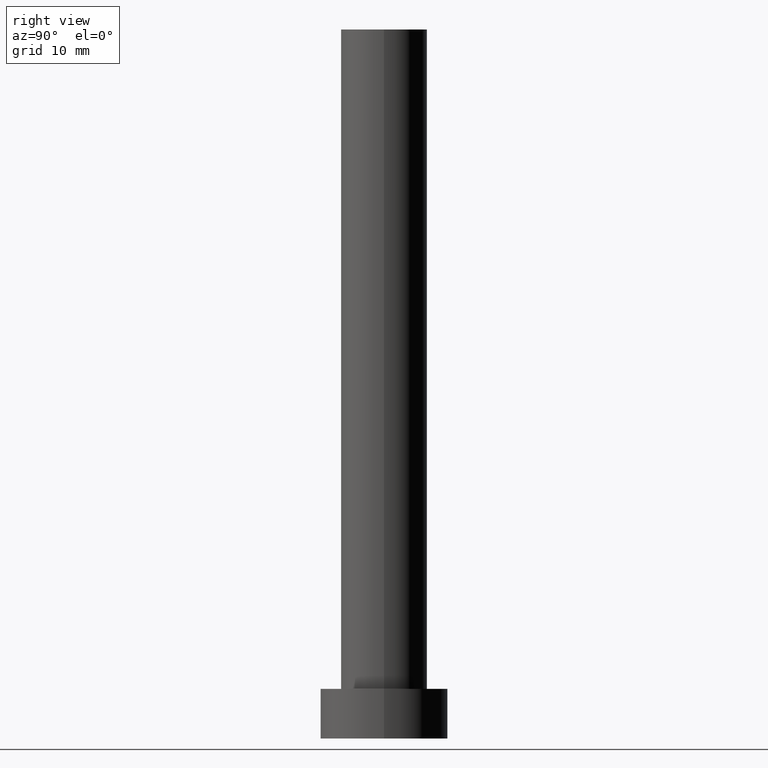
[diagram: clean part render]
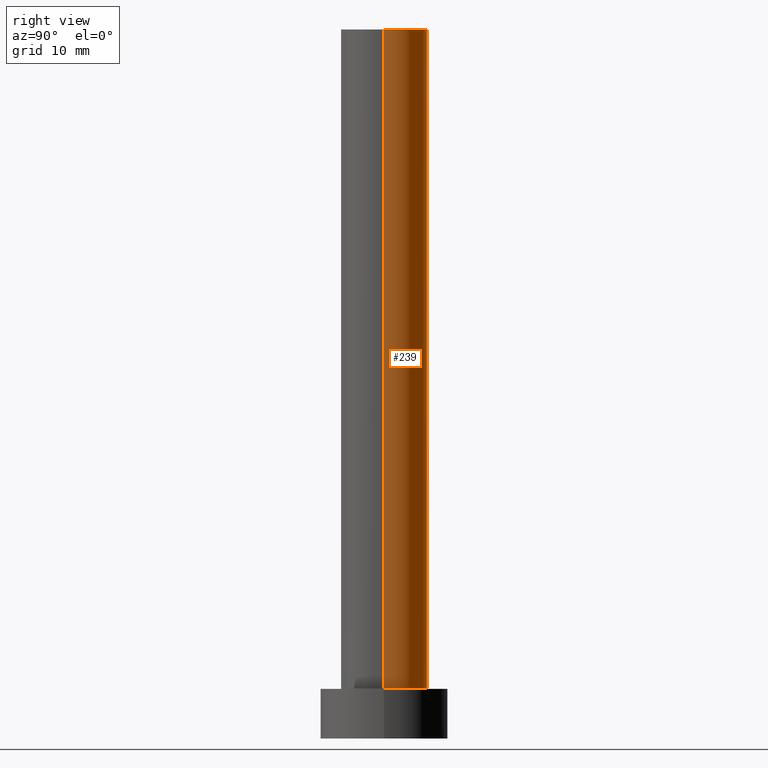
[diagram: same view with one face highlighted and labeled with its STEP entity id]
A machine part, right view. The second image highlights one B-rep face of the part: STEP entity #239.
In plain terms, the highlighted cylindrical surface (partial cylindrical patch) has radius 6.1 mm, axis along (-0, -0, -1).
Its self-contained STEP definition (entity closure, byte-faithful):
#9 = DIRECTION ( 'NONE',  ( 0.000000000000000000, 0.000000000000000000, 1.000000000000000000 ) ) ;
#14 = CARTESIAN_POINT ( 'NONE',  ( 0.000000000000000000, 0.000000000000000000, 100.0000000000000000 ) ) ;
#35 = VECTOR ( 'NONE', #182, 1000.000000000000000 ) ;
#44 = CARTESIAN_POINT ( 'NONE',  ( -6.099999999999999645, 0.000000000000000000, 100.0000000000000000 ) ) ;
#47 = CYLINDRICAL_SURFACE ( 'NONE', #173, 6.099999999999999645 ) ;
#54 = CARTESIAN_POINT ( 'NONE',  ( 6.099999999999999645, 7.470345474798852320E-16, 100.0000000000000000 ) ) ;
#59 = VERTEX_POINT ( 'NONE', #123 ) ;
#74 = ORIENTED_EDGE ( 'NONE', *, *, #238, .F. ) ;
#78 = CARTESIAN_POINT ( 'NONE',  ( 6.099999999999999645, 7.470345474798852320E-16, 100.0000000000000000 ) ) ;
#92 = DIRECTION ( 'NONE',  ( -0.000000000000000000, -0.000000000000000000, -1.000000000000000000 ) ) ;
#98 = VERTEX_POINT ( 'NONE', #44 ) ;
#104 = AXIS2_PLACEMENT_3D ( 'NONE', #132, #108, #176 ) ;
#105 = EDGE_CURVE ( 'NONE', #245, #59, #127, .T. ) ;
#108 = DIRECTION ( 'NONE',  ( 0.000000000000000000, 0.000000000000000000, 1.000000000000000000 ) ) ;
#111 = VECTOR ( 'NONE', #149, 1000.000000000000000 ) ;
#119 = CARTESIAN_POINT ( 'NONE',  ( -6.099999999999999645, 0.000000000000000000, 100.0000000000000000 ) ) ;
#123 = CARTESIAN_POINT ( 'NONE',  ( -6.099999999999999645, 0.000000000000000000, 7.000000000000000000 ) ) ;
#126 = EDGE_CURVE ( 'NONE', #253, #98, #242, .T. ) ;
#127 = CIRCLE ( 'NONE', #104, 6.099999999999999645 ) ;
#128 = ORIENTED_EDGE ( 'NONE', *, *, #105, .T. ) ;
#132 = CARTESIAN_POINT ( 'NONE',  ( 0.000000000000000000, 0.000000000000000000, 7.000000000000000000 ) ) ;
#134 = CARTESIAN_POINT ( 'NONE',  ( 0.000000000000000000, 0.000000000000000000, 100.0000000000000000 ) ) ;
#137 = LINE ( 'NONE', #119, #35 ) ;
#143 = AXIS2_PLACEMENT_3D ( 'NONE', #134, #9, #240 ) ;
#145 = ORIENTED_EDGE ( 'NONE', *, *, #126, .F. ) ;
#149 = DIRECTION ( 'NONE',  ( -0.000000000000000000, -0.000000000000000000, -1.000000000000000000 ) ) ;
#163 = DIRECTION ( 'NONE',  ( -1.000000000000000000, 0.000000000000000000, 0.000000000000000000 ) ) ;
#173 = AXIS2_PLACEMENT_3D ( 'NONE', #14, #92, #163 ) ;
#176 = DIRECTION ( 'NONE',  ( 1.000000000000000000, 0.000000000000000000, 0.000000000000000000 ) ) ;
#182 = DIRECTION ( 'NONE',  ( -0.000000000000000000, -0.000000000000000000, -1.000000000000000000 ) ) ;
#209 = ORIENTED_EDGE ( 'NONE', *, *, #220, .T. ) ;
#219 = FACE_OUTER_BOUND ( 'NONE', #251, .T. ) ;
#220 = EDGE_CURVE ( 'NONE', #253, #245, #244, .T. ) ;
#238 = EDGE_CURVE ( 'NONE', #98, #59, #137, .T. ) ;
#239 = ADVANCED_FACE ( 'NONE', ( #219 ), #47, .T. ) ;
#240 = DIRECTION ( 'NONE',  ( 1.000000000000000000, 0.000000000000000000, 0.000000000000000000 ) ) ;
#242 = CIRCLE ( 'NONE', #143, 6.099999999999999645 ) ;
#244 = LINE ( 'NONE', #54, #111 ) ;
#245 = VERTEX_POINT ( 'NONE', #248 ) ;
#248 = CARTESIAN_POINT ( 'NONE',  ( 6.099999999999999645, 7.470345474798852320E-16, 7.000000000000000000 ) ) ;
#251 = EDGE_LOOP ( 'NONE', ( #145, #209, #128, #74 ) ) ;
#253 = VERTEX_POINT ( 'NONE', #78 ) ;